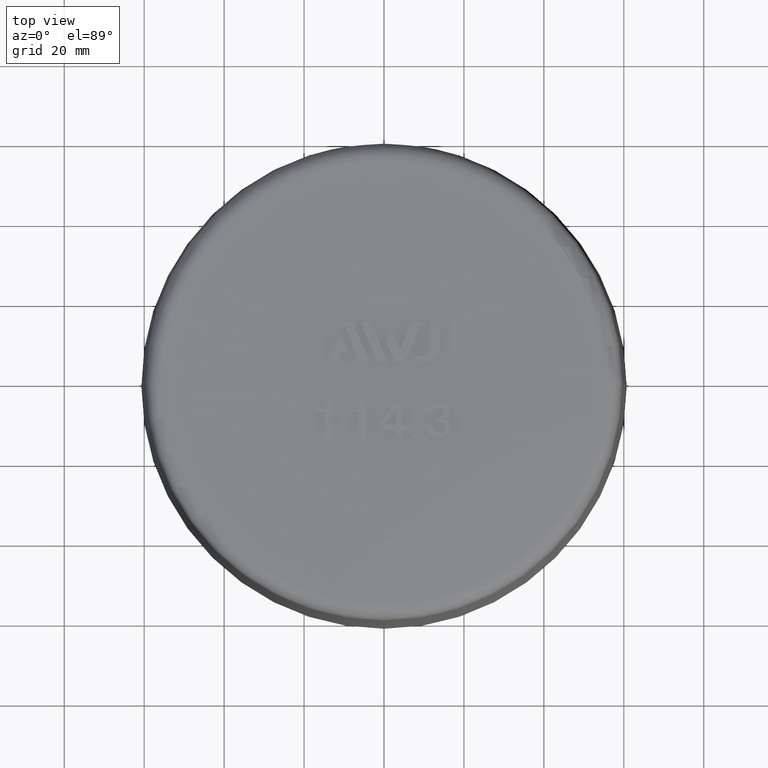
[diagram: clean part render]
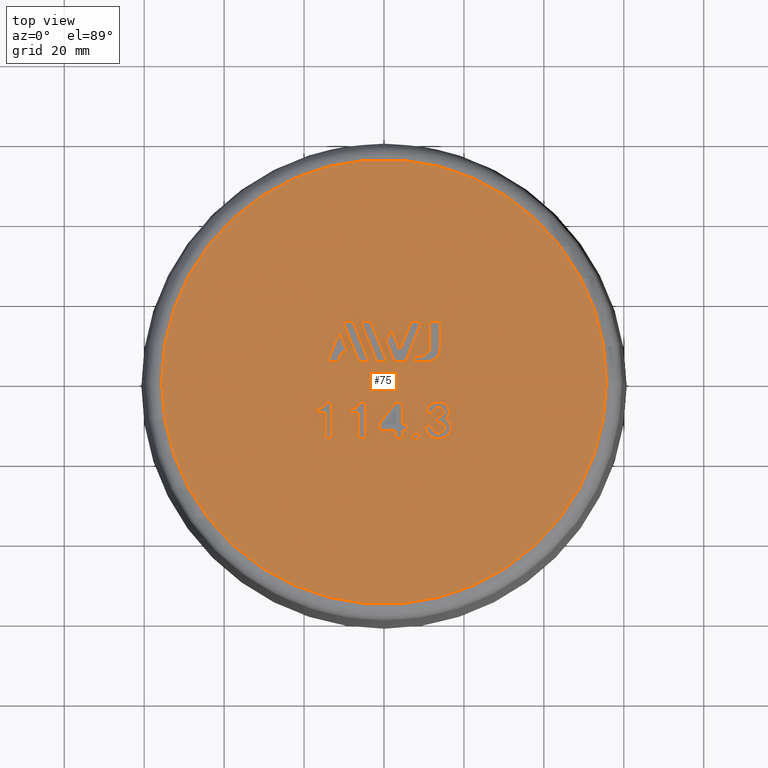
[diagram: same view with one face highlighted and labeled with its STEP entity id]
A machine part, top view. The second image highlights one B-rep face of the part: STEP entity #75.
In plain terms, the highlighted planar face has unit normal (0, 0, -1).
Its self-contained STEP definition (entity closure, byte-faithful):
#75 = ADVANCED_FACE( '', ( #159, #160, #161, #162, #163, #164, #165, #166, #167, #168, #169 ), #170, .F. );
#159 = FACE_BOUND( '', #342, .T. );
#160 = FACE_BOUND( '', #343, .T. );
#161 = FACE_BOUND( '', #344, .T. );
#162 = FACE_BOUND( '', #345, .T. );
#163 = FACE_BOUND( '', #346, .T. );
#164 = FACE_BOUND( '', #347, .T. );
#165 = FACE_OUTER_BOUND( '', #348, .T. );
#166 = FACE_BOUND( '', #349, .T. );
#167 = FACE_BOUND( '', #350, .T. );
#168 = FACE_BOUND( '', #351, .T. );
#169 = FACE_BOUND( '', #352, .T. );
#170 = PLANE( '', #353 );
#342 = EDGE_LOOP( '', ( #533, #534, #535, #536, #537, #538, #539, #540 ) );
#343 = EDGE_LOOP( '', ( #541 ) );
#344 = EDGE_LOOP( '', ( #542, #543, #544, #545, #546, #547, #548, #549, #550, #551, #552 ) );
#345 = EDGE_LOOP( '', ( #553, #554, #555, #556, #557 ) );
#346 = EDGE_LOOP( '', ( #558, #559, #560, #561 ) );
#347 = EDGE_LOOP( '', ( #562, #563, #564, #565, #566, #567, #568, #569 ) );
#348 = EDGE_LOOP( '', ( #570 ) );
#349 = EDGE_LOOP( '', ( #571, #572, #573, #574, #575, #576, #577 ) );
#350 = EDGE_LOOP( '', ( #578, #579, #580, #581 ) );
#351 = EDGE_LOOP( '', ( #582, #583, #584, #585, #586, #587, #588 ) );
#352 = EDGE_LOOP( '', ( #589, #590, #591, #592, #593, #594, #595 ) );
#353 = AXIS2_PLACEMENT_3D( '', #596, #597, #598 );
#533 = ORIENTED_EDGE( '', *, *, #1238, .T. );
#534 = ORIENTED_EDGE( '', *, *, #1239, .T. );
#535 = ORIENTED_EDGE( '', *, *, #1240, .T. );
#536 = ORIENTED_EDGE( '', *, *, #1241, .T. );
#537 = ORIENTED_EDGE( '', *, *, #1242, .T. );
#538 = ORIENTED_EDGE( '', *, *, #1243, .T. );
#539 = ORIENTED_EDGE( '', *, *, #1244, .T. );
#540 = ORIENTED_EDGE( '', *, *, #1245, .T. );
#541 = ORIENTED_EDGE( '', *, *, #1246, .T. );
#542 = ORIENTED_EDGE( '', *, *, #1247, .T. );
#543 = ORIENTED_EDGE( '', *, *, #1248, .T. );
#544 = ORIENTED_EDGE( '', *, *, #1249, .T. );
#545 = ORIENTED_EDGE( '', *, *, #1250, .T. );
#546 = ORIENTED_EDGE( '', *, *, #1251, .T. );
#547 = ORIENTED_EDGE( '', *, *, #1252, .T. );
#548 = ORIENTED_EDGE( '', *, *, #1253, .T. );
#549 = ORIENTED_EDGE( '', *, *, #1254, .T. );
#550 = ORIENTED_EDGE( '', *, *, #1255, .T. );
#551 = ORIENTED_EDGE( '', *, *, #1256, .T. );
#552 = ORIENTED_EDGE( '', *, *, #1257, .T. );
#553 = ORIENTED_EDGE( '', *, *, #1258, .F. );
#554 = ORIENTED_EDGE( '', *, *, #1259, .F. );
#555 = ORIENTED_EDGE( '', *, *, #1260, .F. );
#556 = ORIENTED_EDGE( '', *, *, #1261, .F. );
#557 = ORIENTED_EDGE( '', *, *, #1262, .F. );
#558 = ORIENTED_EDGE( '', *, *, #1263, .F. );
#559 = ORIENTED_EDGE( '', *, *, #1264, .F. );
#560 = ORIENTED_EDGE( '', *, *, #1265, .F. );
#561 = ORIENTED_EDGE( '', *, *, #1266, .F. );
#562 = ORIENTED_EDGE( '', *, *, #1267, .F. );
#563 = ORIENTED_EDGE( '', *, *, #1268, .F. );
#564 = ORIENTED_EDGE( '', *, *, #1269, .F. );
#565 = ORIENTED_EDGE( '', *, *, #1270, .F. );
#566 = ORIENTED_EDGE( '', *, *, #1271, .F. );
#567 = ORIENTED_EDGE( '', *, *, #1272, .F. );
#568 = ORIENTED_EDGE( '', *, *, #1273, .F. );
#569 = ORIENTED_EDGE( '', *, *, #1274, .F. );
#570 = ORIENTED_EDGE( '', *, *, #1275, .T. );
#571 = ORIENTED_EDGE( '', *, *, #1276, .F. );
#572 = ORIENTED_EDGE( '', *, *, #1277, .F. );
#573 = ORIENTED_EDGE( '', *, *, #1278, .F. );
#574 = ORIENTED_EDGE( '', *, *, #1279, .F. );
#575 = ORIENTED_EDGE( '', *, *, #1280, .F. );
#576 = ORIENTED_EDGE( '', *, *, #1281, .F. );
#577 = ORIENTED_EDGE( '', *, *, #1282, .F. );
#578 = ORIENTED_EDGE( '', *, *, #1283, .F. );
#579 = ORIENTED_EDGE( '', *, *, #1284, .F. );
#580 = ORIENTED_EDGE( '', *, *, #1285, .F. );
#581 = ORIENTED_EDGE( '', *, *, #1286, .F. );
#582 = ORIENTED_EDGE( '', *, *, #1287, .T. );
#583 = ORIENTED_EDGE( '', *, *, #1288, .T. );
#584 = ORIENTED_EDGE( '', *, *, #1289, .T. );
#585 = ORIENTED_EDGE( '', *, *, #1290, .T. );
#586 = ORIENTED_EDGE( '', *, *, #1291, .T. );
#587 = ORIENTED_EDGE( '', *, *, #1292, .T. );
#588 = ORIENTED_EDGE( '', *, *, #1293, .T. );
#589 = ORIENTED_EDGE( '', *, *, #1294, .T. );
#590 = ORIENTED_EDGE( '', *, *, #1295, .T. );
#591 = ORIENTED_EDGE( '', *, *, #1296, .T. );
#592 = ORIENTED_EDGE( '', *, *, #1297, .T. );
#593 = ORIENTED_EDGE( '', *, *, #1298, .T. );
#594 = ORIENTED_EDGE( '', *, *, #1299, .T. );
#595 = ORIENTED_EDGE( '', *, *, #1300, .T. );
#596 = CARTESIAN_POINT( '', ( -3.85751001454049E-015, 55.6436507890378, 63.0000000000000 ) );
#597 = DIRECTION( '', ( 6.12303176911189E-017, 0.000000000000000, -1.00000000000000 ) );
#598 = DIRECTION( '', ( -1.00000000000000, 0.000000000000000, -6.12303176911189E-017 ) );
#1238 = EDGE_CURVE( '', #1438, #1439, #1440, .T. );
#1239 = EDGE_CURVE( '', #1439, #1441, #1442, .T. );
#1240 = EDGE_CURVE( '', #1441, #1443, #1444, .T. );
#1241 = EDGE_CURVE( '', #1443, #1445, #1446, .T. );
#1242 = EDGE_CURVE( '', #1445, #1447, #1448, .T. );
#1243 = EDGE_CURVE( '', #1447, #1449, #1450, .T. );
#1244 = EDGE_CURVE( '', #1449, #1451, #1452, .T. );
#1245 = EDGE_CURVE( '', #1451, #1438, #1453, .T. );
#1246 = EDGE_CURVE( '', #1454, #1454, #1455, .T. );
#1247 = EDGE_CURVE( '', #1456, #1457, #1458, .T. );
#1248 = EDGE_CURVE( '', #1457, #1459, #1460, .T. );
#1249 = EDGE_CURVE( '', #1459, #1461, #1462, .T. );
#1250 = EDGE_CURVE( '', #1461, #1463, #1464, .T. );
#1251 = EDGE_CURVE( '', #1463, #1465, #1466, .T. );
#1252 = EDGE_CURVE( '', #1465, #1467, #1468, .T. );
#1253 = EDGE_CURVE( '', #1467, #1469, #1470, .T. );
#1254 = EDGE_CURVE( '', #1469, #1471, #1472, .T. );
#1255 = EDGE_CURVE( '', #1471, #1473, #1474, .T. );
#1256 = EDGE_CURVE( '', #1473, #1475, #1476, .T. );
#1257 = EDGE_CURVE( '', #1475, #1456, #1477, .T. );
#1258 = EDGE_CURVE( '', #1478, #1479, #1480, .T. );
#1259 = EDGE_CURVE( '', #1481, #1478, #1482, .T. );
#1260 = EDGE_CURVE( '', #1483, #1481, #1484, .T. );
#1261 = EDGE_CURVE( '', #1485, #1483, #1486, .T. );
#1262 = EDGE_CURVE( '', #1479, #1485, #1487, .T. );
#1263 = EDGE_CURVE( '', #1488, #1489, #1490, .T. );
#1264 = EDGE_CURVE( '', #1491, #1488, #1492, .T. );
#1265 = EDGE_CURVE( '', #1493, #1491, #1494, .T. );
#1266 = EDGE_CURVE( '', #1489, #1493, #1495, .T. );
#1267 = EDGE_CURVE( '', #1496, #1497, #1498, .T. );
#1268 = EDGE_CURVE( '', #1499, #1496, #1500, .T. );
#1269 = EDGE_CURVE( '', #1501, #1499, #1502, .T. );
#1270 = EDGE_CURVE( '', #1503, #1501, #1504, .T. );
#1271 = EDGE_CURVE( '', #1505, #1503, #1506, .T. );
#1272 = EDGE_CURVE( '', #1507, #1505, #1508, .T. );
#1273 = EDGE_CURVE( '', #1509, #1507, #1510, .T. );
#1274 = EDGE_CURVE( '', #1497, #1509, #1511, .T. );
#1275 = EDGE_CURVE( '', #1512, #1512, #1513, .T. );
#1276 = EDGE_CURVE( '', #1514, #1515, #1516, .T. );
#1277 = EDGE_CURVE( '', #1517, #1514, #1518, .T. );
#1278 = EDGE_CURVE( '', #1519, #1517, #1520, .T. );
#1279 = EDGE_CURVE( '', #1521, #1519, #1522, .T. );
#1280 = EDGE_CURVE( '', #1523, #1521, #1524, .T. );
#1281 = EDGE_CURVE( '', #1525, #1523, #1526, .T. );
#1282 = EDGE_CURVE( '', #1515, #1525, #1527, .T. );
#1283 = EDGE_CURVE( '', #1528, #1529, #1530, .T. );
#1284 = EDGE_CURVE( '', #1531, #1528, #1532, .T. );
#1285 = EDGE_CURVE( '', #1533, #1531, #1534, .T. );
#1286 = EDGE_CURVE( '', #1529, #1533, #1535, .T. );
#1287 = EDGE_CURVE( '', #1536, #1537, #1538, .T. );
#1288 = EDGE_CURVE( '', #1537, #1539, #1540, .T. );
#1289 = EDGE_CURVE( '', #1539, #1541, #1542, .T. );
#1290 = EDGE_CURVE( '', #1541, #1543, #1544, .T. );
#1291 = EDGE_CURVE( '', #1543, #1545, #1546, .T. );
#1292 = EDGE_CURVE( '', #1545, #1547, #1548, .T. );
#1293 = EDGE_CURVE( '', #1547, #1536, #1549, .T. );
#1294 = EDGE_CURVE( '', #1550, #1551, #1552, .T. );
#1295 = EDGE_CURVE( '', #1551, #1553, #1554, .T. );
#1296 = EDGE_CURVE( '', #1553, #1555, #1556, .T. );
#1297 = EDGE_CURVE( '', #1555, #1557, #1558, .T. );
#1298 = EDGE_CURVE( '', #1557, #1559, #1560, .T. );
#1299 = EDGE_CURVE( '', #1559, #1561, #1562, .T. );
#1300 = EDGE_CURVE( '', #1561, #1550, #1563, .T. );
#1438 = VERTEX_POINT( '', #1774 );
#1439 = VERTEX_POINT( '', #1775 );
#1440 = B_SPLINE_CURVE_WITH_KNOTS( '', 2, ( #1776, #1777, #1778, #1779, #1780, #1781, #1782, #1783, #1784 ), .UNSPECIFIED., .F., .F., ( 3, 2, 2, 2, 3 ), ( 19.0000000000000, 20.0000000000000, 21.0000000000000, 22.0000000000000, 23.0000000000000 ), .UNSPECIFIED. );
#1441 = VERTEX_POINT( '', #1785 );
#1442 = B_SPLINE_CURVE_WITH_KNOTS( '', 2, ( #1786, #1787, #1788 ), .UNSPECIFIED., .F., .F., ( 3, 3 ), ( 0.000000000000000, 1.00000000000000 ), .UNSPECIFIED. );
#1443 = VERTEX_POINT( '', #1789 );
#1444 = B_SPLINE_CURVE_WITH_KNOTS( '', 2, ( #1790, #1791, #1792 ), .UNSPECIFIED., .F., .F., ( 3, 3 ), ( 1.00000000000000, 2.00000000000000 ), .UNSPECIFIED. );
#1445 = VERTEX_POINT( '', #1793 );
#1446 = B_SPLINE_CURVE_WITH_KNOTS( '', 2, ( #1794, #1795, #1796, #1797, #1798, #1799, #1800, #1801, #1802, #1803, #1804 ), .UNSPECIFIED., .F., .F., ( 3, 2, 2, 2, 2, 3 ), ( 2.00000000000000, 3.00000000000000, 4.00000000000000, 5.00000000000000, 6.00000000000000, 7.00000000000000 ), .UNSPECIFIED. );
#1447 = VERTEX_POINT( '', #1805 );
#1448 = B_SPLINE_CURVE_WITH_KNOTS( '', 2, ( #1806, #1807, #1808 ), .UNSPECIFIED., .F., .F., ( 3, 3 ), ( 7.00000000000000, 8.00000000000000 ), .UNSPECIFIED. );
#1449 = VERTEX_POINT( '', #1809 );
#1450 = B_SPLINE_CURVE_WITH_KNOTS( '', 2, ( #1810, #1811, #1812, #1813, #1814, #1815, #1816, #1817, #1818, #1819, #1820 ), .UNSPECIFIED., .F., .F., ( 3, 2, 2, 2, 2, 3 ), ( 8.00000000000000, 9.00000000000000, 10.0000000000000, 11.0000000000000, 12.0000000000000, 13.0000000000000 ), .UNSPECIFIED. );
#1451 = VERTEX_POINT( '', #1821 );
#1452 = B_SPLINE_CURVE_WITH_KNOTS( '', 2, ( #1822, #1823, #1824 ), .UNSPECIFIED., .F., .F., ( 3, 3 ), ( 13.0000000000000, 14.0000000000000 ), .UNSPECIFIED. );
#1453 = B_SPLINE_CURVE_WITH_KNOTS( '', 2, ( #1825, #1826, #1827, #1828, #1829, #1830, #1831, #1832, #1833, #1834, #1835 ), .UNSPECIFIED., .F., .F., ( 3, 2, 2, 2, 2, 3 ), ( 14.0000000000000, 15.0000000000000, 16.0000000000000, 17.0000000000000, 18.0000000000000, 19.0000000000000 ), .UNSPECIFIED. );
#1454 = VERTEX_POINT( '', #1836 );
#1455 = B_SPLINE_CURVE_WITH_KNOTS( '', 2, ( #1837, #1838, #1839, #1840, #1841, #1842, #1843, #1844, #1845, #1846, #1847, #1848, #1849, #1850, #1851, #1852, #1853 ), .UNSPECIFIED., .T., .F., ( 3, 2, 2, 2, 2, 2, 2, 2, 3 ), ( 0.000000000000000, 1.00000000000000, 2.00000000000000, 3.00000000000000, 4.00000000000000, 5.00000000000000, 6.00000000000000, 7.00000000000000, 8.00000000000000 ), .UNSPECIFIED. );
#1456 = VERTEX_POINT( '', #1854 );
#1457 = VERTEX_POINT( '', #1855 );
#1458 = B_SPLINE_CURVE_WITH_KNOTS( '', 2, ( #1856, #1857, #1858 ), .UNSPECIFIED., .F., .F., ( 3, 3 ), ( 10.0000000000000, 11.0000000000000 ), .UNSPECIFIED. );
#1459 = VERTEX_POINT( '', #1859 );
#1460 = B_SPLINE_CURVE_WITH_KNOTS( '', 2, ( #1860, #1861, #1862 ), .UNSPECIFIED., .F., .F., ( 3, 3 ), ( 0.000000000000000, 1.00000000000000 ), .UNSPECIFIED. );
#1461 = VERTEX_POINT( '', #1863 );
#1462 = B_SPLINE_CURVE_WITH_KNOTS( '', 2, ( #1864, #1865, #1866 ), .UNSPECIFIED., .F., .F., ( 3, 3 ), ( 1.00000000000000, 2.00000000000000 ), .UNSPECIFIED. );
#1463 = VERTEX_POINT( '', #1867 );
#1464 = B_SPLINE_CURVE_WITH_KNOTS( '', 2, ( #1868, #1869, #1870 ), .UNSPECIFIED., .F., .F., ( 3, 3 ), ( 2.00000000000000, 3.00000000000000 ), .UNSPECIFIED. );
#1465 = VERTEX_POINT( '', #1871 );
#1466 = B_SPLINE_CURVE_WITH_KNOTS( '', 2, ( #1872, #1873, #1874 ), .UNSPECIFIED., .F., .F., ( 3, 3 ), ( 3.00000000000000, 4.00000000000000 ), .UNSPECIFIED. );
#1467 = VERTEX_POINT( '', #1875 );
#1468 = B_SPLINE_CURVE_WITH_KNOTS( '', 2, ( #1876, #1877, #1878 ), .UNSPECIFIED., .F., .F., ( 3, 3 ), ( 4.00000000000000, 5.00000000000000 ), .UNSPECIFIED. );
#1469 = VERTEX_POINT( '', #1879 );
#1470 = B_SPLINE_CURVE_WITH_KNOTS( '', 2, ( #1880, #1881, #1882 ), .UNSPECIFIED., .F., .F., ( 3, 3 ), ( 5.00000000000000, 6.00000000000000 ), .UNSPECIFIED. );
#1471 = VERTEX_POINT( '', #1883 );
#1472 = B_SPLINE_CURVE_WITH_KNOTS( '', 2, ( #1884, #1885, #1886 ), .UNSPECIFIED., .F., .F., ( 3, 3 ), ( 6.00000000000000, 7.00000000000000 ), .UNSPECIFIED. );
#1473 = VERTEX_POINT( '', #1887 );
#1474 = B_SPLINE_CURVE_WITH_KNOTS( '', 2, ( #1888, #1889, #1890 ), .UNSPECIFIED., .F., .F., ( 3, 3 ), ( 7.00000000000000, 8.00000000000000 ), .UNSPECIFIED. );
#1475 = VERTEX_POINT( '', #1891 );
#1476 = B_SPLINE_CURVE_WITH_KNOTS( '', 2, ( #1892, #1893, #1894 ), .UNSPECIFIED., .F., .F., ( 3, 3 ), ( 8.00000000000000, 9.00000000000000 ), .UNSPECIFIED. );
#1477 = B_SPLINE_CURVE_WITH_KNOTS( '', 2, ( #1895, #1896, #1897 ), .UNSPECIFIED., .F., .F., ( 3, 3 ), ( 9.00000000000000, 10.0000000000000 ), .UNSPECIFIED. );
#1478 = VERTEX_POINT( '', #1898 );
#1479 = VERTEX_POINT( '', #1899 );
#1480 = LINE( '', #1900, #1901 );
#1481 = VERTEX_POINT( '', #1902 );
#1482 = LINE( '', #1903, #1904 );
#1483 = VERTEX_POINT( '', #1905 );
#1484 = LINE( '', #1906, #1907 );
#1485 = VERTEX_POINT( '', #1908 );
#1486 = LINE( '', #1909, #1910 );
#1487 = LINE( '', #1911, #1912 );
#1488 = VERTEX_POINT( '', #1913 );
#1489 = VERTEX_POINT( '', #1914 );
#1490 = LINE( '', #1915, #1916 );
#1491 = VERTEX_POINT( '', #1917 );
#1492 = LINE( '', #1918, #1919 );
#1493 = VERTEX_POINT( '', #1920 );
#1494 = LINE( '', #1921, #1922 );
#1495 = LINE( '', #1923, #1924 );
#1496 = VERTEX_POINT( '', #1925 );
#1497 = VERTEX_POINT( '', #1926 );
#1498 = LINE( '', #1927, #1928 );
#1499 = VERTEX_POINT( '', #1929 );
#1500 = LINE( '', #1930, #1931 );
#1501 = VERTEX_POINT( '', #1932 );
#1502 = LINE( '', #1933, #1934 );
#1503 = VERTEX_POINT( '', #1935 );
#1504 = CIRCLE( '', #1936, 3.33666000000000 );
#1505 = VERTEX_POINT( '', #1937 );
#1506 = LINE( '', #1938, #1939 );
#1507 = VERTEX_POINT( '', #1940 );
#1508 = LINE( '', #1941, #1942 );
#1509 = VERTEX_POINT( '', #1943 );
#1510 = LINE( '', #1944, #1945 );
#1511 = CIRCLE( '', #1946, 2.22444000000000 );
#1512 = VERTEX_POINT( '', #1947 );
#1513 = CIRCLE( '', #1948, 55.6436507890378 );
#1514 = VERTEX_POINT( '', #1949 );
#1515 = VERTEX_POINT( '', #1950 );
#1516 = LINE( '', #1951, #1952 );
#1517 = VERTEX_POINT( '', #1953 );
#1518 = LINE( '', #1954, #1955 );
#1519 = VERTEX_POINT( '', #1956 );
#1520 = LINE( '', #1957, #1958 );
#1521 = VERTEX_POINT( '', #1959 );
#1522 = LINE( '', #1960, #1961 );
#1523 = VERTEX_POINT( '', #1962 );
#1524 = LINE( '', #1963, #1964 );
#1525 = VERTEX_POINT( '', #1965 );
#1526 = LINE( '', #1966, #1967 );
#1527 = LINE( '', #1968, #1969 );
#1528 = VERTEX_POINT( '', #1970 );
#1529 = VERTEX_POINT( '', #1971 );
#1530 = LINE( '', #1972, #1973 );
#1531 = VERTEX_POINT( '', #1974 );
#1532 = LINE( '', #1975, #1976 );
#1533 = VERTEX_POINT( '', #1977 );
#1534 = LINE( '', #1978, #1979 );
#1535 = LINE( '', #1980, #1981 );
#1536 = VERTEX_POINT( '', #1982 );
#1537 = VERTEX_POINT( '', #1983 );
#1538 = B_SPLINE_CURVE_WITH_KNOTS( '', 2, ( #1984, #1985, #1986 ), .UNSPECIFIED., .F., .F., ( 3, 3 ), ( 7.00000000000000, 8.00000000000000 ), .UNSPECIFIED. );
#1539 = VERTEX_POINT( '', #1987 );
#1540 = B_SPLINE_CURVE_WITH_KNOTS( '', 2, ( #1988, #1989, #1990 ), .UNSPECIFIED., .F., .F., ( 3, 3 ), ( 0.000000000000000, 1.00000000000000 ), .UNSPECIFIED. );
#1541 = VERTEX_POINT( '', #1991 );
#1542 = B_SPLINE_CURVE_WITH_KNOTS( '', 2, ( #1992, #1993, #1994, #1995, #1996 ), .UNSPECIFIED., .F., .F., ( 3, 2, 3 ), ( 1.00000000000000, 2.00000000000000, 3.00000000000000 ), .UNSPECIFIED. );
#1543 = VERTEX_POINT( '', #1997 );
#1544 = B_SPLINE_CURVE_WITH_KNOTS( '', 2, ( #1998, #1999, #2000 ), .UNSPECIFIED., .F., .F., ( 3, 3 ), ( 3.00000000000000, 4.00000000000000 ), .UNSPECIFIED. );
#1545 = VERTEX_POINT( '', #2001 );
#1546 = B_SPLINE_CURVE_WITH_KNOTS( '', 2, ( #2002, #2003, #2004 ), .UNSPECIFIED., .F., .F., ( 3, 3 ), ( 4.00000000000000, 5.00000000000000 ), .UNSPECIFIED. );
#1547 = VERTEX_POINT( '', #2005 );
#1548 = B_SPLINE_CURVE_WITH_KNOTS( '', 2, ( #2006, #2007, #2008 ), .UNSPECIFIED., .F., .F., ( 3, 3 ), ( 5.00000000000000, 6.00000000000000 ), .UNSPECIFIED. );
#1549 = B_SPLINE_CURVE_WITH_KNOTS( '', 2, ( #2009, #2010, #2011 ), .UNSPECIFIED., .F., .F., ( 3, 3 ), ( 6.00000000000000, 7.00000000000000 ), .UNSPECIFIED. );
#1550 = VERTEX_POINT( '', #2012 );
#1551 = VERTEX_POINT( '', #2013 );
#1552 = B_SPLINE_CURVE_WITH_KNOTS( '', 2, ( #2014, #2015, #2016 ), .UNSPECIFIED., .F., .F., ( 3, 3 ), ( 7.00000000000000, 8.00000000000000 ), .UNSPECIFIED. );
#1553 = VERTEX_POINT( '', #2017 );
#1554 = B_SPLINE_CURVE_WITH_KNOTS( '', 2, ( #2018, #2019, #2020 ), .UNSPECIFIED., .F., .F., ( 3, 3 ), ( 0.000000000000000, 1.00000000000000 ), .UNSPECIFIED. );
#1555 = VERTEX_POINT( '', #2021 );
#1556 = B_SPLINE_CURVE_WITH_KNOTS( '', 2, ( #2022, #2023, #2024, #2025, #2026 ), .UNSPECIFIED., .F., .F., ( 3, 2, 3 ), ( 1.00000000000000, 2.00000000000000, 3.00000000000000 ), .UNSPECIFIED. );
#1557 = VERTEX_POINT( '', #2027 );
#1558 = B_SPLINE_CURVE_WITH_KNOTS( '', 2, ( #2028, #2029, #2030 ), .UNSPECIFIED., .F., .F., ( 3, 3 ), ( 3.00000000000000, 4.00000000000000 ), .UNSPECIFIED. );
#1559 = VERTEX_POINT( '', #2031 );
#1560 = B_SPLINE_CURVE_WITH_KNOTS( '', 2, ( #2032, #2033, #2034 ), .UNSPECIFIED., .F., .F., ( 3, 3 ), ( 4.00000000000000, 5.00000000000000 ), .UNSPECIFIED. );
#1561 = VERTEX_POINT( '', #2035 );
#1562 = B_SPLINE_CURVE_WITH_KNOTS( '', 2, ( #2036, #2037, #2038 ), .UNSPECIFIED., .F., .F., ( 3, 3 ), ( 5.00000000000000, 6.00000000000000 ), .UNSPECIFIED. );
#1563 = B_SPLINE_CURVE_WITH_KNOTS( '', 2, ( #2039, #2040, #2041 ), .UNSPECIFIED., .F., .F., ( 3, 3 ), ( 6.00000000000000, 7.00000000000000 ), .UNSPECIFIED. );
#1774 = CARTESIAN_POINT( '', ( 15.2685511363636, -9.34157128895279, 63.0000000000000 ) );
#1775 = CARTESIAN_POINT( '', ( 11.4737165282190, -13.4579904818184, 63.0000000000000 ) );
#1776 = CARTESIAN_POINT( '', ( 15.2685511363636, -9.34157128895279, 63.0000000000000 ) );
#1777 = CARTESIAN_POINT( '', ( 16.5640056818182, -9.60066219804370, 63.0000000000000 ) );
#1778 = CARTESIAN_POINT( '', ( 16.7982249414977, -11.0645325710404, 63.0000000000000 ) );
#1779 = CARTESIAN_POINT( '', ( 16.9785511363636, -12.1915712889528, 63.0000000000000 ) );
#1780 = CARTESIAN_POINT( '', ( 16.1050141166823, -13.1483023105086, 63.0000000000000 ) );
#1781 = CARTESIAN_POINT( '', ( 15.1649147727273, -14.1779349253164, 63.0000000000000 ) );
#1782 = CARTESIAN_POINT( '', ( 13.7140056818182, -14.1779349253164, 63.0000000000000 ) );
#1783 = CARTESIAN_POINT( '', ( 12.3149147727273, -14.1779349253164, 63.0000000000000 ) );
#1784 = CARTESIAN_POINT( '', ( 11.4737165282190, -13.4579904818184, 63.0000000000000 ) );
#1785 = CARTESIAN_POINT( '', ( 10.3976420454545, -11.0256621980437, 63.0000000000000 ) );
#1786 = CARTESIAN_POINT( '', ( 11.4737165282190, -13.4579904818184, 63.0000000000000 ) );
#1787 = CARTESIAN_POINT( '', ( 10.3976420454545, -12.5370258344073, 63.0000000000000 ) );
#1788 = CARTESIAN_POINT( '', ( 10.3976420454545, -11.0256621980437, 63.0000000000000 ) );
#1789 = CARTESIAN_POINT( '', ( 11.9521875000000, -11.0256621980437, 63.0000000000000 ) );
#1790 = CARTESIAN_POINT( '', ( 10.3976420454545, -11.0256621980437, 63.0000000000000 ) );
#1791 = CARTESIAN_POINT( '', ( 11.1749147727273, -11.0256621980437, 63.0000000000000 ) );
#1792 = CARTESIAN_POINT( '', ( 11.9521875000000, -11.0256621980437, 63.0000000000000 ) );
#1793 = CARTESIAN_POINT( '', ( 13.0403693181818, -10.1620258344073, 63.0000000000000 ) );
#1794 = CARTESIAN_POINT( '', ( 11.9521875000000, -11.0256621980437, 63.0000000000000 ) );
#1795 = CARTESIAN_POINT( '', ( 12.1076420454545, -12.2779349253164, 63.0000000000000 ) );
#1796 = CARTESIAN_POINT( '', ( 12.8889595132341, -12.6139854490926, 63.0000000000000 ) );
#1797 = CARTESIAN_POINT( '', ( 13.7140056818182, -12.9688440162255, 63.0000000000000 ) );
#1798 = CARTESIAN_POINT( '', ( 14.3339190168596, -12.6627139742298, 63.0000000000000 ) );
#1799 = CARTESIAN_POINT( '', ( 15.1130965909091, -12.2779349253164, 63.0000000000000 ) );
#1800 = CARTESIAN_POINT( '', ( 15.1784298377194, -11.5883062089855, 63.0000000000000 ) );
#1801 = CARTESIAN_POINT( '', ( 15.2685511363636, -10.6370258344073, 63.0000000000000 ) );
#1802 = CARTESIAN_POINT( '', ( 14.4938612175553, -10.3282726058968, 63.0000000000000 ) );
#1803 = CARTESIAN_POINT( '', ( 14.0767329545454, -10.1620258344073, 63.0000000000000 ) );
#1804 = CARTESIAN_POINT( '', ( 13.0403693181818, -10.1620258344073, 63.0000000000000 ) );
#1805 = CARTESIAN_POINT( '', ( 13.0403693181818, -8.82338947077097, 63.0000000000000 ) );
#1806 = CARTESIAN_POINT( '', ( 13.0403693181818, -10.1620258344073, 63.0000000000000 ) );
#1807 = CARTESIAN_POINT( '', ( 13.0403693181818, -9.49270765258915, 63.0000000000000 ) );
#1808 = CARTESIAN_POINT( '', ( 13.0403693181818, -8.82338947077097, 63.0000000000000 ) );
#1809 = CARTESIAN_POINT( '', ( 12.0558238636364, -7.95975310713461, 63.0000000000000 ) );
#1810 = CARTESIAN_POINT( '', ( 13.0403693181818, -8.82338947077097, 63.0000000000000 ) );
#1811 = CARTESIAN_POINT( '', ( 14.3358238636364, -8.82338947077097, 63.0000000000000 ) );
#1812 = CARTESIAN_POINT( '', ( 14.6891861823831, -8.21341880150576, 63.0000000000000 ) );
#1813 = CARTESIAN_POINT( '', ( 15.0612784090909, -7.57111674349824, 63.0000000000000 ) );
#1814 = CARTESIAN_POINT( '', ( 14.7702611346187, -7.04199442627612, 63.0000000000000 ) );
#1815 = CARTESIAN_POINT( '', ( 14.4912784090909, -6.53475310713461, 63.0000000000000 ) );
#1816 = CARTESIAN_POINT( '', ( 13.8709066389875, -6.43901672285939, 63.0000000000000 ) );
#1817 = CARTESIAN_POINT( '', ( 13.0921875000000, -6.31884401622552, 63.0000000000000 ) );
#1818 = CARTESIAN_POINT( '', ( 12.6258238636364, -6.79384401622552, 63.0000000000000 ) );
#1819 = CARTESIAN_POINT( '', ( 12.1594602272727, -7.26884401622552, 63.0000000000000 ) );
#1820 = CARTESIAN_POINT( '', ( 12.0558238636364, -7.95975310713461, 63.0000000000000 ) );
#1821 = CARTESIAN_POINT( '', ( 10.6567329545455, -7.95975310713461, 63.0000000000000 ) );
#1822 = CARTESIAN_POINT( '', ( 12.0558238636364, -7.95975310713461, 63.0000000000000 ) );
#1823 = CARTESIAN_POINT( '', ( 11.3562784090909, -7.95975310713461, 63.0000000000000 ) );
#1824 = CARTESIAN_POINT( '', ( 10.6567329545455, -7.95975310713461, 63.0000000000000 ) );
#1825 = CARTESIAN_POINT( '', ( 10.6567329545455, -7.95975310713461, 63.0000000000000 ) );
#1826 = CARTESIAN_POINT( '', ( 10.7085511363636, -6.53475310713461, 63.0000000000000 ) );
#1827 = CARTESIAN_POINT( '', ( 11.5781205277923, -5.78746691137558, 63.0000000000000 ) );
#1828 = CARTESIAN_POINT( '', ( 12.3667329545455, -5.10975310713461, 63.0000000000000 ) );
#1829 = CARTESIAN_POINT( '', ( 13.7140056818182, -5.10975310713461, 63.0000000000000 ) );
#1830 = CARTESIAN_POINT( '', ( 14.7503693181818, -5.10975310713461, 63.0000000000000 ) );
#1831 = CARTESIAN_POINT( '', ( 15.5174604314154, -5.72695285341447, 63.0000000000000 ) );
#1832 = CARTESIAN_POINT( '', ( 16.2530965909091, -6.31884401622552, 63.0000000000000 ) );
#1833 = CARTESIAN_POINT( '', ( 16.3361623583590, -7.27063926825633, 63.0000000000000 ) );
#1834 = CARTESIAN_POINT( '', ( 16.4603693181818, -8.69384401622552, 63.0000000000000 ) );
#1835 = CARTESIAN_POINT( '', ( 15.2685511363636, -9.34157128895279, 63.0000000000000 ) );
#1836 = CARTESIAN_POINT( '', ( 7.91036931818181, -12.8392985616801, 63.0000000000000 ) );
#1837 = CARTESIAN_POINT( '', ( 7.91036931818181, -12.8392985616801, 63.0000000000000 ) );
#1838 = CARTESIAN_POINT( '', ( 8.27309659090909, -12.8392985616801, 63.0000000000000 ) );
#1839 = CARTESIAN_POINT( '', ( 8.58400568181818, -13.0983894707710, 63.0000000000000 ) );
#1840 = CARTESIAN_POINT( '', ( 8.84309659090909, -13.3142985616801, 63.0000000000000 ) );
#1841 = CARTESIAN_POINT( '', ( 8.84309659090909, -13.6165712889528, 63.0000000000000 ) );
#1842 = CARTESIAN_POINT( '', ( 8.84309659090909, -13.9188440162255, 63.0000000000000 ) );
#1843 = CARTESIAN_POINT( '', ( 8.58400568181818, -14.1347531071346, 63.0000000000000 ) );
#1844 = CARTESIAN_POINT( '', ( 8.27309659090909, -14.3938440162255, 63.0000000000000 ) );
#1845 = CARTESIAN_POINT( '', ( 7.91036931818181, -14.3938440162255, 63.0000000000000 ) );
#1846 = CARTESIAN_POINT( '', ( 7.54764204545454, -14.3938440162255, 63.0000000000000 ) );
#1847 = CARTESIAN_POINT( '', ( 7.23673295454545, -14.1347531071346, 63.0000000000000 ) );
#1848 = CARTESIAN_POINT( '', ( 6.97764204545454, -13.9188440162255, 63.0000000000000 ) );
#1849 = CARTESIAN_POINT( '', ( 6.97764204545454, -13.6165712889528, 63.0000000000000 ) );
#1850 = CARTESIAN_POINT( '', ( 6.97764204545454, -13.3142985616801, 63.0000000000000 ) );
#1851 = CARTESIAN_POINT( '', ( 7.23673295454545, -13.0983894707710, 63.0000000000000 ) );
#1852 = CARTESIAN_POINT( '', ( 7.54764204545454, -12.8392985616801, 63.0000000000000 ) );
#1853 = CARTESIAN_POINT( '', ( 7.91036931818181, -12.8392985616801, 63.0000000000000 ) );
#1854 = CARTESIAN_POINT( '', ( 2.93582386363636, -12.1483894707710, 63.0000000000000 ) );
#1855 = CARTESIAN_POINT( '', ( -1.05417613636364, -12.1483894707710, 63.0000000000000 ) );
#1856 = CARTESIAN_POINT( '', ( 2.93582386363636, -12.1483894707710, 63.0000000000000 ) );
#1857 = CARTESIAN_POINT( '', ( 0.940823863636360, -12.1483894707710, 63.0000000000000 ) );
#1858 = CARTESIAN_POINT( '', ( -1.05417613636364, -12.1483894707710, 63.0000000000000 ) );
#1859 = CARTESIAN_POINT( '', ( -1.05417613636364, -10.2915712889528, 63.0000000000000 ) );
#1860 = CARTESIAN_POINT( '', ( -1.05417613636364, -12.1483894707710, 63.0000000000000 ) );
#1861 = CARTESIAN_POINT( '', ( -1.05417613636364, -11.2199803798619, 63.0000000000000 ) );
#1862 = CARTESIAN_POINT( '', ( -1.05417613636364, -10.2915712889528, 63.0000000000000 ) );
#1863 = CARTESIAN_POINT( '', ( 2.83218750000000, -5.19611674349824, 63.0000000000000 ) );
#1864 = CARTESIAN_POINT( '', ( -1.05417613636364, -10.2915712889528, 63.0000000000000 ) );
#1865 = CARTESIAN_POINT( '', ( 0.889005681818180, -7.74384401622552, 63.0000000000000 ) );
#1866 = CARTESIAN_POINT( '', ( 2.83218750000000, -5.19611674349824, 63.0000000000000 ) );
#1867 = CARTESIAN_POINT( '', ( 4.59400568181818, -5.19611674349824, 63.0000000000000 ) );
#1868 = CARTESIAN_POINT( '', ( 2.83218750000000, -5.19611674349824, 63.0000000000000 ) );
#1869 = CARTESIAN_POINT( '', ( 3.71309659090909, -5.19611674349824, 63.0000000000000 ) );
#1870 = CARTESIAN_POINT( '', ( 4.59400568181818, -5.19611674349824, 63.0000000000000 ) );
#1871 = CARTESIAN_POINT( '', ( 4.59400568181818, -10.7665712889528, 63.0000000000000 ) );
#1872 = CARTESIAN_POINT( '', ( 4.59400568181818, -5.19611674349824, 63.0000000000000 ) );
#1873 = CARTESIAN_POINT( '', ( 4.59400568181818, -7.98134401622552, 63.0000000000000 ) );
#1874 = CARTESIAN_POINT( '', ( 4.59400568181818, -10.7665712889528, 63.0000000000000 ) );
#1875 = CARTESIAN_POINT( '', ( 5.78582386363636, -10.7665712889528, 63.0000000000000 ) );
#1876 = CARTESIAN_POINT( '', ( 4.59400568181818, -10.7665712889528, 63.0000000000000 ) );
#1877 = CARTESIAN_POINT( '', ( 5.18991477272727, -10.7665712889528, 63.0000000000000 ) );
#1878 = CARTESIAN_POINT( '', ( 5.78582386363636, -10.7665712889528, 63.0000000000000 ) );
#1879 = CARTESIAN_POINT( '', ( 5.78582386363636, -12.1483894707710, 63.0000000000000 ) );
#1880 = CARTESIAN_POINT( '', ( 5.78582386363636, -10.7665712889528, 63.0000000000000 ) );
#1881 = CARTESIAN_POINT( '', ( 5.78582386363636, -11.4574803798619, 63.0000000000000 ) );
#1882 = CARTESIAN_POINT( '', ( 5.78582386363636, -12.1483894707710, 63.0000000000000 ) );
#1883 = CARTESIAN_POINT( '', ( 4.59400568181818, -12.1483894707710, 63.0000000000000 ) );
#1884 = CARTESIAN_POINT( '', ( 5.78582386363636, -12.1483894707710, 63.0000000000000 ) );
#1885 = CARTESIAN_POINT( '', ( 5.18991477272727, -12.1483894707710, 63.0000000000000 ) );
#1886 = CARTESIAN_POINT( '', ( 4.59400568181818, -12.1483894707710, 63.0000000000000 ) );
#1887 = CARTESIAN_POINT( '', ( 4.59400568181818, -14.0915712889528, 63.0000000000000 ) );
#1888 = CARTESIAN_POINT( '', ( 4.59400568181818, -12.1483894707710, 63.0000000000000 ) );
#1889 = CARTESIAN_POINT( '', ( 4.59400568181818, -13.1199803798619, 63.0000000000000 ) );
#1890 = CARTESIAN_POINT( '', ( 4.59400568181818, -14.0915712889528, 63.0000000000000 ) );
#1891 = CARTESIAN_POINT( '', ( 2.93582386363636, -14.0915712889528, 63.0000000000000 ) );
#1892 = CARTESIAN_POINT( '', ( 4.59400568181818, -14.0915712889528, 63.0000000000000 ) );
#1893 = CARTESIAN_POINT( '', ( 3.76491477272727, -14.0915712889528, 63.0000000000000 ) );
#1894 = CARTESIAN_POINT( '', ( 2.93582386363636, -14.0915712889528, 63.0000000000000 ) );
#1895 = CARTESIAN_POINT( '', ( 2.93582386363636, -14.0915712889528, 63.0000000000000 ) );
#1896 = CARTESIAN_POINT( '', ( 2.93582386363636, -13.1199803798619, 63.0000000000000 ) );
#1897 = CARTESIAN_POINT( '', ( 2.93582386363636, -12.1483894707710, 63.0000000000000 ) );
#1898 = CARTESIAN_POINT( '', ( -14.1332909616000, 4.99321143831995, 63.0000000000000 ) );
#1899 = CARTESIAN_POINT( '', ( -11.5492891433400, 4.99321143831996, 63.0000000000000 ) );
#1900 = CARTESIAN_POINT( '', ( -14.1332909616000, 4.99321143831996, 63.0000000000000 ) );
#1901 = VECTOR( '', #2470, 1000.00000000000 );
#1902 = CARTESIAN_POINT( '', ( -11.1035947838400, 12.4929398160400, 63.0000000000000 ) );
#1903 = CARTESIAN_POINT( '', ( -11.1035947838400, 12.4929398160400, 63.0000000000000 ) );
#1904 = VECTOR( '', #2471, 1000.00000000000 );
#1905 = CARTESIAN_POINT( '', ( -9.00787089221999, 7.30344364023996, 63.0000000000000 ) );
#1906 = CARTESIAN_POINT( '', ( -9.00787089221999, 7.30344364023996, 63.0000000000000 ) );
#1907 = VECTOR( '', #2472, 1000.00000000000 );
#1908 = CARTESIAN_POINT( '', ( -10.6152156451800, 7.30344364023996, 63.0000000000000 ) );
#1909 = CARTESIAN_POINT( '', ( -10.6152156451800, 7.30344364023996, 63.0000000000000 ) );
#1910 = VECTOR( '', #2473, 1000.00000000000 );
#1911 = CARTESIAN_POINT( '', ( -11.5492891433400, 4.99321143831996, 63.0000000000000 ) );
#1912 = VECTOR( '', #2474, 1000.00000000000 );
#1913 = CARTESIAN_POINT( '', ( 0.757365096779998, 4.99321143831995, 63.0000000000000 ) );
#1914 = CARTESIAN_POINT( '', ( -3.28440345552001, 14.9958685818400, 63.0000000000000 ) );
#1915 = CARTESIAN_POINT( '', ( 0.757365096779998, 4.99321143831995, 63.0000000000000 ) );
#1916 = VECTOR( '', #2475, 1000.00000000000 );
#1917 = CARTESIAN_POINT( '', ( -1.82738969442002, 4.99321143831995, 63.0000000000000 ) );
#1918 = CARTESIAN_POINT( '', ( -1.82738969442000, 4.99321143831995, 63.0000000000000 ) );
#1919 = VECTOR( '', #2476, 1000.00000000000 );
#1920 = CARTESIAN_POINT( '', ( -5.86915713450000, 14.9958685818400, 63.0000000000000 ) );
#1921 = CARTESIAN_POINT( '', ( -5.86915713450000, 14.9958685818400, 63.0000000000000 ) );
#1922 = VECTOR( '', #2477, 1000.00000000000 );
#1923 = CARTESIAN_POINT( '', ( -3.28440345552001, 14.9958685818400, 63.0000000000000 ) );
#1924 = VECTOR( '', #2478, 1000.00000000000 );
#1925 = CARTESIAN_POINT( '', ( 11.4423013648800, 14.9958685818400, 63.0000000000000 ) );
#1926 = CARTESIAN_POINT( '', ( 11.4423013648800, 8.67222721317997, 63.0000000000000 ) );
#1927 = CARTESIAN_POINT( '', ( 11.4423013648800, 14.9958685818400, 63.0000000000000 ) );
#1928 = VECTOR( '', #2479, 1000.00000000000 );
#1929 = CARTESIAN_POINT( '', ( 14.0564031930000, 14.9958685818400, 63.0000000000000 ) );
#1930 = CARTESIAN_POINT( '', ( 14.0564031930000, 14.9958685818400, 63.0000000000000 ) );
#1931 = VECTOR( '', #2480, 1000.00000000000 );
#1932 = CARTESIAN_POINT( '', ( 14.0564031930000, 8.32987143831995, 63.0000000000000 ) );
#1933 = CARTESIAN_POINT( '', ( 14.0564031930000, 8.32987143831995, 63.0000000000000 ) );
#1934 = VECTOR( '', #2481, 1000.00000000000 );
#1935 = CARTESIAN_POINT( '', ( 10.7197431930000, 4.99321143831995, 63.0000000000000 ) );
#1936 = AXIS2_PLACEMENT_3D( '', #2482, #2483, #2484 );
#1937 = CARTESIAN_POINT( '', ( 7.20937333674001, 4.99321143831995, 63.0000000000000 ) );
#1938 = CARTESIAN_POINT( '', ( 7.20937333674000, 4.99321143831995, 63.0000000000000 ) );
#1939 = VECTOR( '', #2485, 1000.00000000000 );
#1940 = CARTESIAN_POINT( '', ( 7.79705926253999, 6.44778721317997, 63.0000000000000 ) );
#1941 = CARTESIAN_POINT( '', ( 7.79705926253999, 6.44778721317997, 63.0000000000000 ) );
#1942 = VECTOR( '', #2486, 1000.00000000000 );
#1943 = CARTESIAN_POINT( '', ( 9.21786136487999, 6.44778721317997, 63.0000000000000 ) );
#1944 = CARTESIAN_POINT( '', ( 9.21786136487999, 6.44778721317997, 63.0000000000000 ) );
#1945 = VECTOR( '', #2487, 1000.00000000000 );
#1946 = AXIS2_PLACEMENT_3D( '', #2488, #2489, #2490 );
#1947 = CARTESIAN_POINT( '', ( 55.6436507890378, 0.000000000000000, 63.0000000000000 ) );
#1948 = AXIS2_PLACEMENT_3D( '', #2491, #2492, #2493 );
#1949 = CARTESIAN_POINT( '', ( 9.39068255736000, 14.9958685818400, 63.0000000000000 ) );
#1950 = CARTESIAN_POINT( '', ( 6.80589439955999, 14.9958685818400, 63.0000000000000 ) );
#1951 = CARTESIAN_POINT( '', ( 9.39068255736000, 14.9958685818400, 63.0000000000000 ) );
#1952 = VECTOR( '', #2494, 1000.00000000000 );
#1953 = CARTESIAN_POINT( '', ( 5.34954908267999, 4.99321143831996, 63.0000000000000 ) );
#1954 = CARTESIAN_POINT( '', ( 5.34954908267998, 4.99321143831996, 63.0000000000000 ) );
#1955 = VECTOR( '', #2495, 1000.00000000000 );
#1956 = CARTESIAN_POINT( '', ( 2.61718823862000, 4.99321143831995, 63.0000000000000 ) );
#1957 = CARTESIAN_POINT( '', ( 2.61718823862000, 4.99321143831996, 63.0000000000000 ) );
#1958 = VECTOR( '', #2496, 1000.00000000000 );
#1959 = CARTESIAN_POINT( '', ( 0.557881766459997, 10.0892844707800, 63.0000000000000 ) );
#1960 = CARTESIAN_POINT( '', ( 0.557881766460002, 10.0892844707800, 63.0000000000000 ) );
#1961 = VECTOR( '', #2497, 1000.00000000000 );
#1962 = CARTESIAN_POINT( '', ( 1.85027584536000, 13.2886320140200, 63.0000000000000 ) );
#1963 = CARTESIAN_POINT( '', ( 1.85027584535999, 13.2886320140200, 63.0000000000000 ) );
#1964 = VECTOR( '', #2498, 1000.00000000000 );
#1965 = CARTESIAN_POINT( '', ( 3.98308448843999, 8.00998918077997, 63.0000000000000 ) );
#1966 = CARTESIAN_POINT( '', ( 3.98308448844000, 8.00998918077997, 63.0000000000000 ) );
#1967 = VECTOR( '', #2499, 1000.00000000000 );
#1968 = CARTESIAN_POINT( '', ( 6.80589439955999, 14.9958685818400, 63.0000000000000 ) );
#1969 = VECTOR( '', #2500, 1000.00000000000 );
#1970 = CARTESIAN_POINT( '', ( -3.68727956946000, 4.99321143831996, 63.0000000000000 ) );
#1971 = CARTESIAN_POINT( '', ( -7.72904812176000, 14.9958685818400, 63.0000000000000 ) );
#1972 = CARTESIAN_POINT( '', ( -3.68727956946000, 4.99321143831995, 63.0000000000000 ) );
#1973 = VECTOR( '', #2501, 1000.00000000000 );
#1974 = CARTESIAN_POINT( '', ( -6.27184973214002, 4.99321143831995, 63.0000000000000 ) );
#1975 = CARTESIAN_POINT( '', ( -6.27184973214000, 4.99321143831996, 63.0000000000000 ) );
#1976 = VECTOR( '', #2502, 1000.00000000000 );
#1977 = CARTESIAN_POINT( '', ( -10.3130499400200, 14.9958685818400, 63.0000000000000 ) );
#1978 = CARTESIAN_POINT( '', ( -10.3130499400200, 14.9958685818400, 63.0000000000000 ) );
#1979 = VECTOR( '', #2503, 1000.00000000000 );
#1980 = CARTESIAN_POINT( '', ( -7.72904812176000, 14.9958685818400, 63.0000000000000 ) );
#1981 = VECTOR( '', #2504, 1000.00000000000 );
#1982 = CARTESIAN_POINT( '', ( -14.7859943181818, -7.78702583440733, 63.0000000000000 ) );
#1983 = CARTESIAN_POINT( '', ( -16.8069034090909, -7.78702583440733, 63.0000000000000 ) );
#1984 = CARTESIAN_POINT( '', ( -14.7859943181818, -7.78702583440733, 63.0000000000000 ) );
#1985 = CARTESIAN_POINT( '', ( -15.7964488636364, -7.78702583440733, 63.0000000000000 ) );
#1986 = CARTESIAN_POINT( '', ( -16.8069034090909, -7.78702583440733, 63.0000000000000 ) );
#1987 = CARTESIAN_POINT( '', ( -16.8069034090909, -6.70748037986188, 63.0000000000000 ) );
#1988 = CARTESIAN_POINT( '', ( -16.8069034090909, -7.78702583440733, 63.0000000000000 ) );
#1989 = CARTESIAN_POINT( '', ( -16.8069034090909, -7.24725310713460, 63.0000000000000 ) );
#1990 = CARTESIAN_POINT( '', ( -16.8069034090909, -6.70748037986188, 63.0000000000000 ) );
#1991 = CARTESIAN_POINT( '', ( -14.4750852272727, -5.19611674349824, 63.0000000000000 ) );
#1992 = CARTESIAN_POINT( '', ( -16.8069034090909, -6.70748037986188, 63.0000000000000 ) );
#1993 = CARTESIAN_POINT( '', ( -15.7187215909091, -6.62111674349824, 63.0000000000000 ) );
#1994 = CARTESIAN_POINT( '', ( -15.2897087782184, -6.38873480329080, 63.0000000000000 ) );
#1995 = CARTESIAN_POINT( '', ( -14.6823579545455, -6.05975310713460, 63.0000000000000 ) );
#1996 = CARTESIAN_POINT( '', ( -14.4750852272727, -5.19611674349824, 63.0000000000000 ) );
#1997 = CARTESIAN_POINT( '', ( -13.0241761363636, -5.19611674349824, 63.0000000000000 ) );
#1998 = CARTESIAN_POINT( '', ( -14.4750852272727, -5.19611674349824, 63.0000000000000 ) );
#1999 = CARTESIAN_POINT( '', ( -13.7496306818182, -5.19611674349824, 63.0000000000000 ) );
#2000 = CARTESIAN_POINT( '', ( -13.0241761363636, -5.19611674349824, 63.0000000000000 ) );
#2001 = CARTESIAN_POINT( '', ( -13.0241761363636, -14.0915712889528, 63.0000000000000 ) );
#2002 = CARTESIAN_POINT( '', ( -13.0241761363636, -5.19611674349824, 63.0000000000000 ) );
#2003 = CARTESIAN_POINT( '', ( -13.0241761363636, -9.64384401622551, 63.0000000000000 ) );
#2004 = CARTESIAN_POINT( '', ( -13.0241761363636, -14.0915712889528, 63.0000000000000 ) );
#2005 = CARTESIAN_POINT( '', ( -14.7859943181818, -14.0915712889528, 63.0000000000000 ) );
#2006 = CARTESIAN_POINT( '', ( -13.0241761363636, -14.0915712889528, 63.0000000000000 ) );
#2007 = CARTESIAN_POINT( '', ( -13.9050852272727, -14.0915712889528, 63.0000000000000 ) );
#2008 = CARTESIAN_POINT( '', ( -14.7859943181818, -14.0915712889528, 63.0000000000000 ) );
#2009 = CARTESIAN_POINT( '', ( -14.7859943181818, -14.0915712889528, 63.0000000000000 ) );
#2010 = CARTESIAN_POINT( '', ( -14.7859943181818, -10.9392985616801, 63.0000000000000 ) );
#2011 = CARTESIAN_POINT( '', ( -14.7859943181818, -7.78702583440733, 63.0000000000000 ) );
#2012 = CARTESIAN_POINT( '', ( -6.44326704545455, -7.78702583440733, 63.0000000000000 ) );
#2013 = CARTESIAN_POINT( '', ( -8.46417613636364, -7.78702583440733, 63.0000000000000 ) );
#2014 = CARTESIAN_POINT( '', ( -6.44326704545455, -7.78702583440733, 63.0000000000000 ) );
#2015 = CARTESIAN_POINT( '', ( -7.45372159090909, -7.78702583440733, 63.0000000000000 ) );
#2016 = CARTESIAN_POINT( '', ( -8.46417613636364, -7.78702583440733, 63.0000000000000 ) );
#2017 = CARTESIAN_POINT( '', ( -8.46417613636364, -6.70748037986188, 63.0000000000000 ) );
#2018 = CARTESIAN_POINT( '', ( -8.46417613636364, -7.78702583440733, 63.0000000000000 ) );
#2019 = CARTESIAN_POINT( '', ( -8.46417613636364, -7.24725310713460, 63.0000000000000 ) );
#2020 = CARTESIAN_POINT( '', ( -8.46417613636364, -6.70748037986188, 63.0000000000000 ) );
#2021 = CARTESIAN_POINT( '', ( -6.13235795454546, -5.19611674349824, 63.0000000000000 ) );
#2022 = CARTESIAN_POINT( '', ( -8.46417613636364, -6.70748037986188, 63.0000000000000 ) );
#2023 = CARTESIAN_POINT( '', ( -7.37599431818182, -6.62111674349824, 63.0000000000000 ) );
#2024 = CARTESIAN_POINT( '', ( -6.94698150549115, -6.38873480329080, 63.0000000000000 ) );
#2025 = CARTESIAN_POINT( '', ( -6.33963068181818, -6.05975310713460, 63.0000000000000 ) );
#2026 = CARTESIAN_POINT( '', ( -6.13235795454546, -5.19611674349824, 63.0000000000000 ) );
#2027 = CARTESIAN_POINT( '', ( -4.68144886363636, -5.19611674349824, 63.0000000000000 ) );
#2028 = CARTESIAN_POINT( '', ( -6.13235795454546, -5.19611674349824, 63.0000000000000 ) );
#2029 = CARTESIAN_POINT( '', ( -5.40690340909091, -5.19611674349824, 63.0000000000000 ) );
#2030 = CARTESIAN_POINT( '', ( -4.68144886363636, -5.19611674349824, 63.0000000000000 ) );
#2031 = CARTESIAN_POINT( '', ( -4.68144886363636, -14.0915712889528, 63.0000000000000 ) );
#2032 = CARTESIAN_POINT( '', ( -4.68144886363636, -5.19611674349824, 63.0000000000000 ) );
#2033 = CARTESIAN_POINT( '', ( -4.68144886363636, -9.64384401622551, 63.0000000000000 ) );
#2034 = CARTESIAN_POINT( '', ( -4.68144886363636, -14.0915712889528, 63.0000000000000 ) );
#2035 = CARTESIAN_POINT( '', ( -6.44326704545455, -14.0915712889528, 63.0000000000000 ) );
#2036 = CARTESIAN_POINT( '', ( -4.68144886363636, -14.0915712889528, 63.0000000000000 ) );
#2037 = CARTESIAN_POINT( '', ( -5.56235795454546, -14.0915712889528, 63.0000000000000 ) );
#2038 = CARTESIAN_POINT( '', ( -6.44326704545455, -14.0915712889528, 63.0000000000000 ) );
#2039 = CARTESIAN_POINT( '', ( -6.44326704545455, -14.0915712889528, 63.0000000000000 ) );
#2040 = CARTESIAN_POINT( '', ( -6.44326704545455, -10.9392985616801, 63.0000000000000 ) );
#2041 = CARTESIAN_POINT( '', ( -6.44326704545455, -7.78702583440733, 63.0000000000000 ) );
#2470 = DIRECTION( '', ( 1.00000000000000, -6.69494841509799E-017, 1.83690953073357E-016 ) );
#2471 = DIRECTION( '', ( -0.374565060835224, -0.927200633736574, -6.88042130128021E-017 ) );
#2472 = DIRECTION( '', ( -0.374457798873768, 0.927243957576760, -6.87845099608738E-017 ) );
#2473 = DIRECTION( '', ( 1.00000000000000, -1.14383329197221E-017, 1.83690953073357E-016 ) );
#2474 = DIRECTION( '', ( 0.374840859640758, 0.927089170438194, 6.88548747582471E-017 ) );
#2475 = DIRECTION( '', ( -0.374641075834904, 0.927169922019295, -6.88181762805412E-017 ) );
#2476 = DIRECTION( '', ( 1.00000000000000, -6.12303176911189E-017, 1.83690953073357E-016 ) );
#2477 = DIRECTION( '', ( 0.374640987210495, -0.927169957829710, 6.88181600010391E-017 ) );
#2478 = DIRECTION( '', ( -1.00000000000000, 6.12303176911189E-017, -1.83690953073357E-016 ) );
#2479 = DIRECTION( '', ( -6.69494841509799E-017, -1.00000000000000, -4.79971094235239E-033 ) );
#2480 = DIRECTION( '', ( -1.00000000000000, 6.69494841509799E-017, -1.83690953073357E-016 ) );
#2481 = DIRECTION( '', ( 6.69494841509799E-017, 1.00000000000000, 4.79971094235239E-033 ) );
#2482 = CARTESIAN_POINT( '', ( 10.7197431930000, 8.32987143831995, 63.0000000000000 ) );
#2483 = DIRECTION( '', ( -6.12303176911189E-017, 0.000000000000000, 1.00000000000000 ) );
#2484 = DIRECTION( '', ( 1.00000000000000, 0.000000000000000, 6.12303176911189E-017 ) );
#2485 = DIRECTION( '', ( 1.00000000000000, -6.69494841509799E-017, 1.83690953073357E-016 ) );
#2486 = DIRECTION( '', ( -0.374606136016172, -0.927184039368147, -6.88117581519382E-017 ) );
#2487 = DIRECTION( '', ( -1.00000000000000, 6.69494841509799E-017, -1.83690953073357E-016 ) );
#2488 = CARTESIAN_POINT( '', ( 9.21786136487999, 8.67222721317997, 63.0000000000000 ) );
#2489 = DIRECTION( '', ( 6.12303176911189E-017, 0.000000000000000, -1.00000000000000 ) );
#2490 = DIRECTION( '', ( 1.00000000000000, 0.000000000000000, 6.12303176911189E-017 ) );
#2491 = CARTESIAN_POINT( '', ( -3.85751001454049E-015, 0.000000000000000, 63.0000000000000 ) );
#2492 = DIRECTION( '', ( -6.12303176911189E-017, 0.000000000000000, 1.00000000000000 ) );
#2493 = DIRECTION( '', ( 1.00000000000000, 0.000000000000000, 6.12303176911189E-017 ) );
#2494 = DIRECTION( '', ( -1.00000000000000, 6.69494841509799E-017, -1.83690953073357E-016 ) );
#2495 = DIRECTION( '', ( 0.374590469627020, 0.927190368837278, 6.88088803779836E-017 ) );
#2496 = DIRECTION( '', ( 1.00000000000000, -1.14383329197221E-017, 1.83690953073357E-016 ) );
#2497 = DIRECTION( '', ( 0.374662791989133, -0.927161146888127, 6.88221653416086E-017 ) );
#2498 = DIRECTION( '', ( -0.374550228315492, -0.927206625552693, -6.88014884131161E-017 ) );
#2499 = DIRECTION( '', ( -0.374621466961798, 0.927177845125405, -6.88145743079516E-017 ) );
#2500 = DIRECTION( '', ( -0.374644407000048, -0.927168575990139, -6.88187881854414E-017 ) );
#2501 = DIRECTION( '', ( -0.374641075834904, 0.927169922019295, -6.88181762805412E-017 ) );
#2502 = DIRECTION( '', ( 1.00000000000000, -6.12303176911189E-017, 1.83690953073357E-016 ) );
#2503 = DIRECTION( '', ( 0.374595787424495, -0.927188220397468, 6.88098572092699E-017 ) );
#2504 = DIRECTION( '', ( -1.00000000000000, 6.12303176911189E-017, -1.83690953073357E-016 ) );